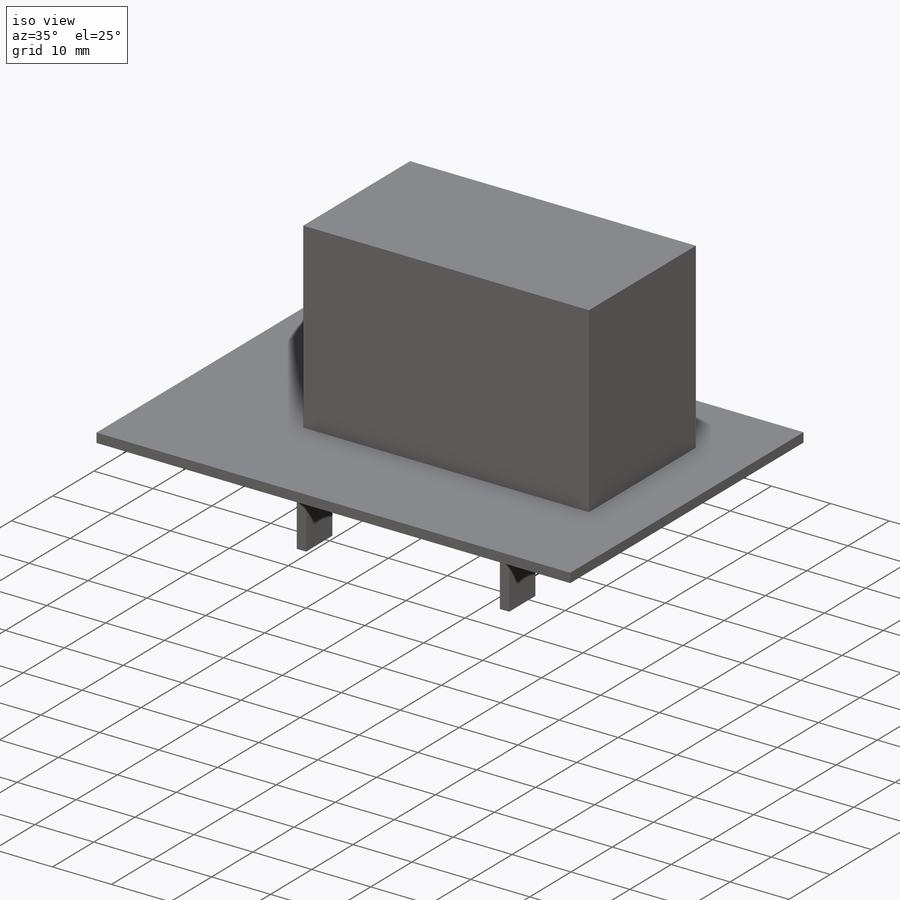
[diagram: iso view]
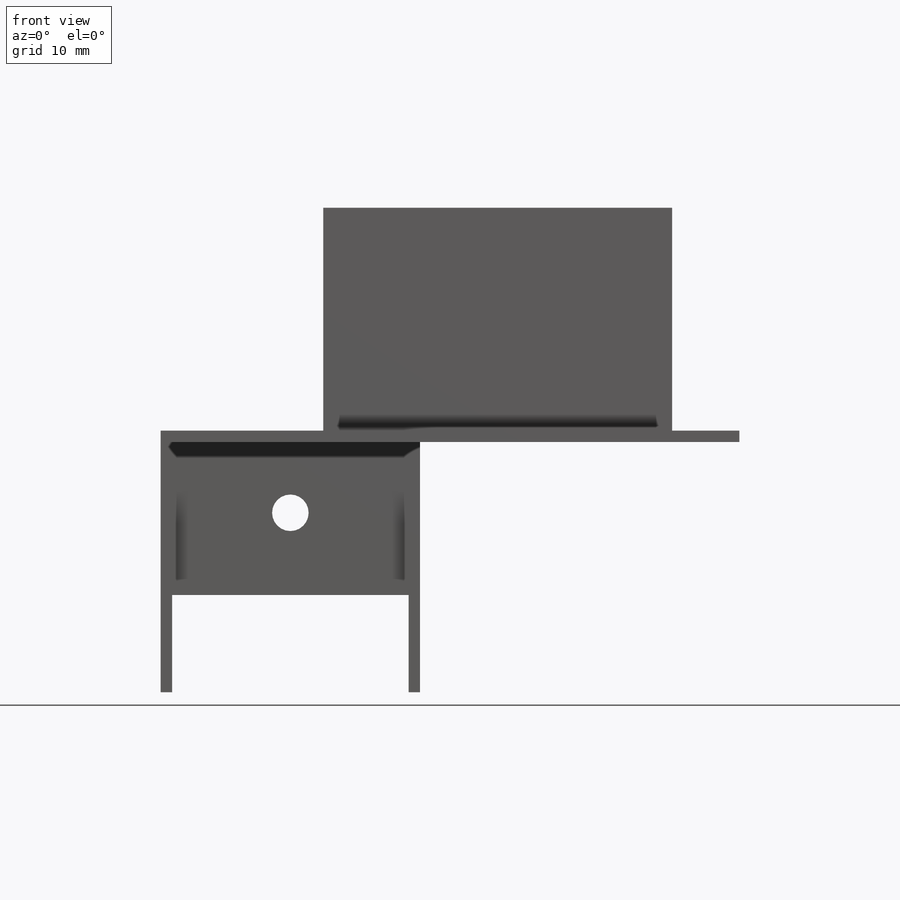
[diagram: front view]
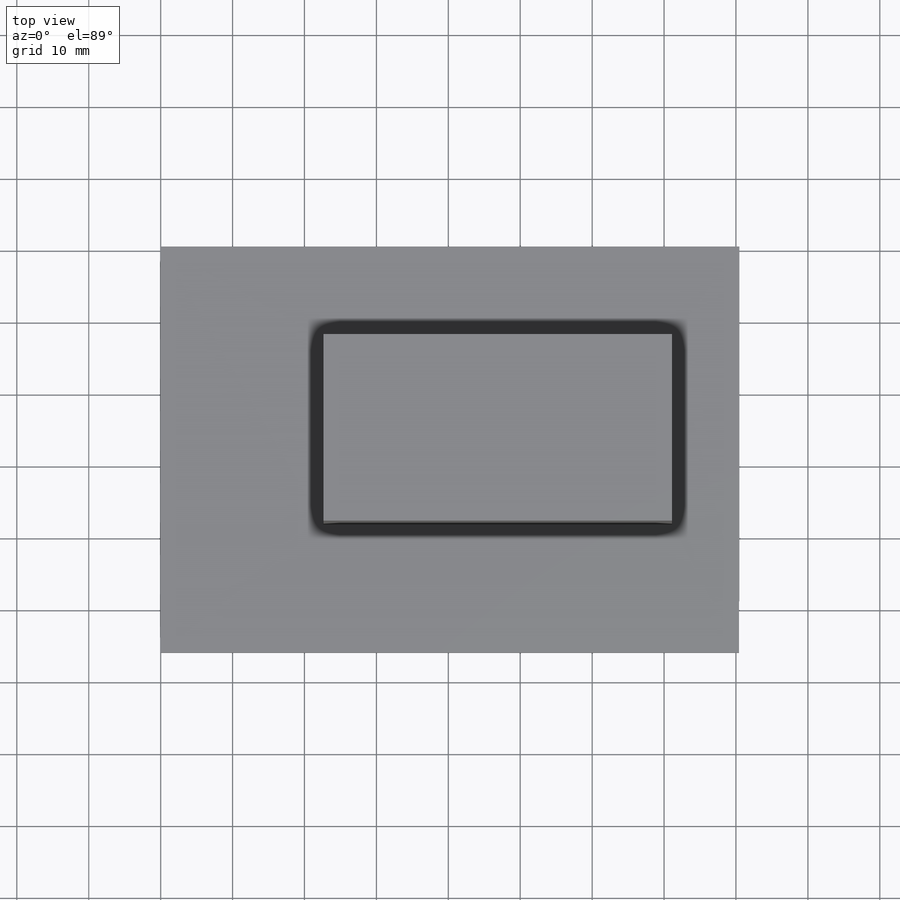
[diagram: top view]
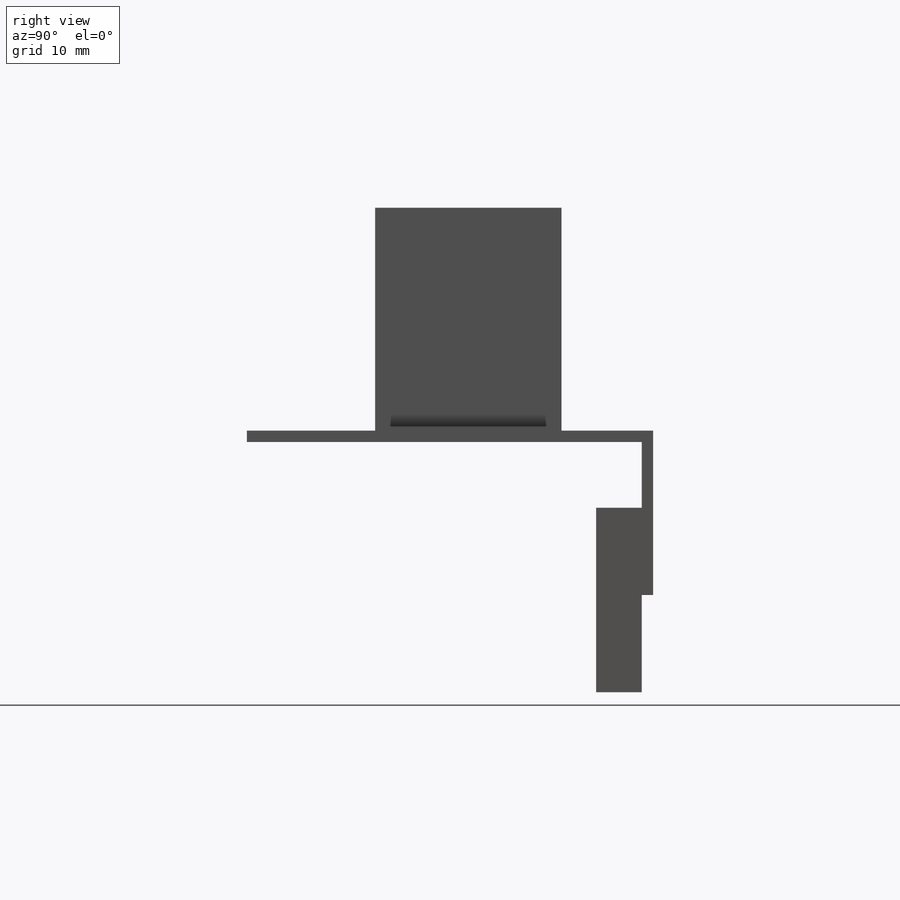
[diagram: right view]
SOLIDWORKS PART (.sldprt)
format: sldprt  version: not decoded by parser v0  size: 275,968 bytes
history: native  units: mm
features: sketch x7, extrude x5, material x1, hole x1 (+11 scaffold rows collapsed)
feature tree (25):
  scaffold x11  (default folders/planes/origin — collapsed)
  material  "Material <not specified>"
  sketch  "Sketch1"  dims[c1.D1=80.4672mm c1.D2=49.3268mm c1.D3=25.4mm c1.D4=25.4mm c1.D5=~44.428941mm c2.D3=56.388mm c2.D5=48.514mm c2.D6=18.6944mm c2.D7=~33.705369mm]
  extrude  "Boss-Extrude1"  Depth=1.5875mm
  sketch  "Sketch2"  dims[D1=1.5875mm D2=36.068mm]
  extrude  "Boss-Extrude2"  Depth=21.2725mm
  sketch  "Sketch3"  dims[c1.D1=1.5875mm c1.D2=~14.885384mm c1.D3=1.5875mm c2.D2=9.144mm c2.D3=34.7599mm c2.D1=1.5875mm c2.D4=12.1285mm c3.D1=1.5875mm c3.D2=9.144mm c3.D3=34.798mm]
  extrude  "Boss-Extrude3"  Depth=6.35mm
  hole  "Hole1"  Diameter=5.08mm Depth=15.875mm
  sketch  "Sketch6"
  sketch  "Sketch5"  dims[Diameter=5.08mm Depth=15.875mm]
  sketch  "Sketch9"  dims[D1=48.514mm D2=25.908mm D3=22.606mm D4=10.668mm]
  extrude  "Boss-Extrude4"  Depth=30.988mm
  sketch  "Sketch11"
  extrude  "Boss-Extrude5"  [1 undecoded]
decode coverage: 10 of 13 modeling features carry decoded parameters
note: ~ marks probable driven/reference dimensions
note: 1 parameter value undecoded
note: suppression state not decoded; provenance and decode notes live in map.json
